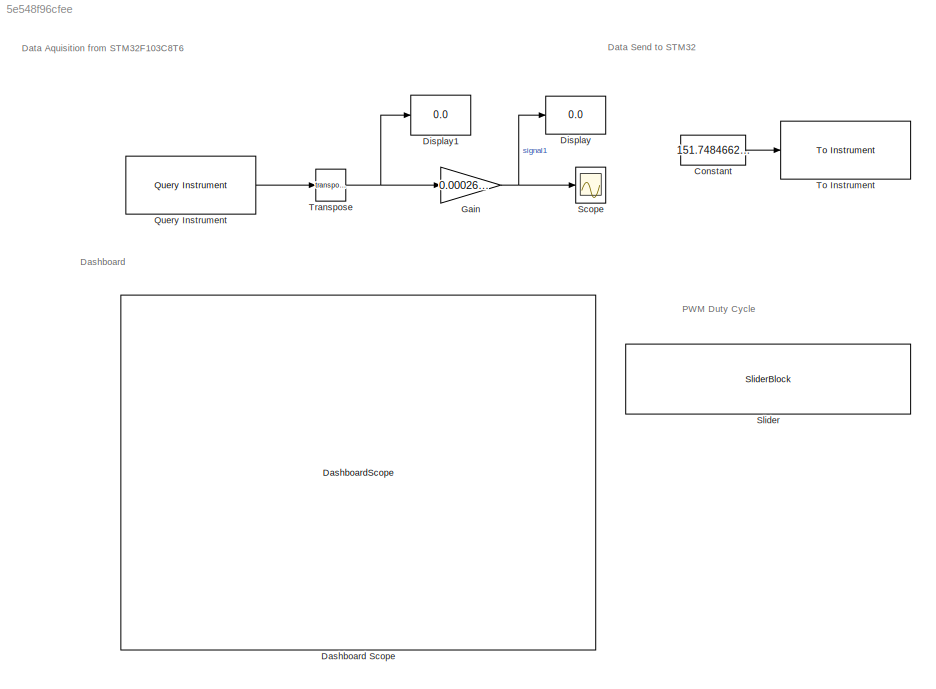
MODEL slx_5e548f96cfee
KIND model
CONFIG AbsTol = auto
CONFIG EnableMultiTasking = off
CONFIG FixedStep = auto
CONFIG MaxStep = auto
CONFIG MinStep = auto
CONFIG RelTol = 1e-3
CONFIG SampleTimeConstraint = Unconstrained
CONFIG Solver = VariableStepAuto
CONFIG SolverName = VariableStepAuto
CONFIG StartTime = 0.0
CONFIG StopTime = inf
BLOCK [Constant] Constant
  OutDataTypeStr = double
  SampleTime = 0
  Value = 151.7484662576687
BLOCK [DashboardScope] Dashboard Scope
  TimeSpan = 100
  Ymax = 1.2
  Ymin = -0.20000000000000001
BLOCK [Display] Display
  Decimation = 1
  Format = binary (Stored Integer)
  Ports = [1]
BLOCK [Display] Display1
  Decimation = 1
  Format = bank
  Ports = [1]
BLOCK [Gain] Gain
  Gain = 0.0002629
  OutDataTypeStr = Inherit: Inherit via internal rule
  ParamDataTypeStr = Inherit: Inherit via internal rule
  SaturateOnIntegerOverflow = off
BLOCK [Reference] Query Instrument  REF=instrumentlib/Query Instrument
  Ports = [0, 1]
  SourceBlock = instrumentlib/Query Instrument
  SourceProductBaseCode = IC
  SourceProductName = Instrument Control Toolbox
  SourceType = queryinstrument
BLOCK [Scope] Scope
  Floating = off
  NumInputPorts = 1
  Ports = [1]
  ScopeSpecificationString = Simulink.scopes.TimeScopeBlockCfg('CurrentConfiguration', extmgr.ConfigurationSet(extmgr.Configuration('Core','General UI',true,'DisplayFullSourceName',true),extmgr.Configuration('Core','Source UI',true),extmgr.Configuration('Sources','WiredSimulink',true,'SampleTime','0'),extmgr.Configuration('Visuals','Time Domain',true,'SerializedDisplays',{struct('MinYLimReal','-0.12511','MaxYLimReal','1.12597...<+1700ch>
BLOCK [SliderBlock] Slider
  ScaleMax = 255
BLOCK [Reference] To Instrument  REF=instrumentlib/To Instrument
  Ports = [1]
  SourceBlock = instrumentlib/To Instrument
  SourceProductBaseCode = IC
  SourceProductName = Instrument Control Toolbox
  SourceType = toinstrument
BLOCK [Math] Transpose
  Operator = transpose
  Ports = [1, 1]
ANNOTATION (root): PWM Duty Cycle
ANNOTATION (root): Dashboard
ANNOTATION (root): Data Aquisition from STM32F103C8T6
ANNOTATION (root): Data Send to STM32
LINE Constant:1 -> To Instrument:1
NET Gain:1 -> Display:1, Scope:1
LINE Query Instrument:1 -> Transpose:1
NET Transpose:1 -> Display1:1, Gain:1
note: NET lines group one-source signal fan-out (src -> all destinations, sorted); 1:1 wires keep LINE
